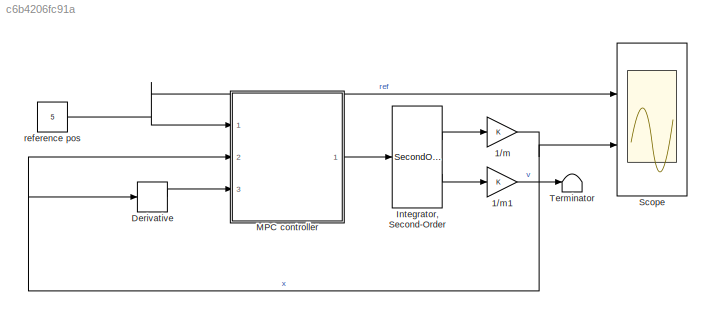
MODEL slx_c6b4206fc91a
KIND model
CONFIG AbsTol = auto
CONFIG EnableMultiTasking = off
CONFIG FixedStep = 0.01
CONFIG MaxStep = auto
CONFIG MinStep = auto
CONFIG RelTol = 1e-3
CONFIG SampleTimeConstraint = Unconstrained
CONFIG SolverName = FixedStepAuto
CONFIG StartTime = 0.0
CONFIG StopTime = 3
BLOCK [Gain] 1//m
BLOCK [Gain] 1//m1
BLOCK [Derivative] Derivative
BLOCK [SecondOrderIntegrator] Integrator, Second-Order
  Ports = [1, 2]
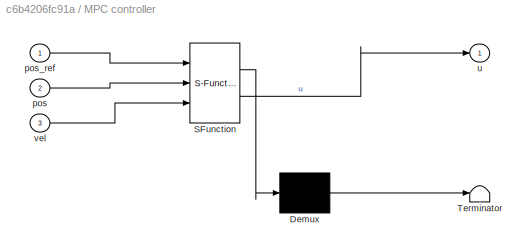
BLOCK [SubSystem] MPC controller
  ErrorFcn = Stateflow.Translate.translate
  PermitHierarchicalResolution = ExplicitOnly
  Ports = [3, 1]
  RequestExecContextInheritance = off
  SFBlockType = MATLAB Function
  TreatAsAtomicUnit = on
BLOCK [Demux] MPC controller/ Demux 
  Outputs = 1
  Ports = [1, 1]
BLOCK [S-Function] MPC controller/ SFunction 
  EnableBusSupport = on
  FunctionName = sf_sfun
  PortCounts = [3 2]
  Ports = [3, 2]
  SFcnIsStateOwnerBlock = off
  SFunctionDeploymentMode = off
  Tag = Stateflow S-Function 2
BLOCK [Terminator] MPC controller/ Terminator 
BLOCK [Inport] MPC controller/pos
  Port = 2
BLOCK [Inport] MPC controller/pos_ref
BLOCK [Outport] MPC controller/u
BLOCK [Inport] MPC controller/vel
  Port = 3
BLOCK [Scope] Scope
  Floating = off
  NumInputPorts = 2
  Ports = [2]
  ScopeSpecificationString = Simulink.scopes.TimeScopeBlockCfg('CurrentConfiguration', extmgr.ConfigurationSet(extmgr.Configuration('Core','General UI',true),extmgr.Configuration('Core','Source UI',true),extmgr.Configuration('Sources','WiredSimulink',true),extmgr.Configuration('Visuals','Time Domain',true,'SerializedDisplays',{struct('MinYLimReal','-2.22373','MaxYLimReal','15.67103','YLabelReal','','MinYLimMag','0.00000','Max...<+1445ch>
BLOCK [Terminator] Terminator
BLOCK [Constant] reference pos
  Value = 5
LINE 1//m1:1 -> Terminator:1
NET 1//m:1 -> Derivative:1, MPC controller:2, Scope:2
LINE Derivative:1 -> MPC controller:3
LINE Integrator, Second-Order:1 -> 1//m:1
LINE Integrator, Second-Order:2 -> 1//m1:1
LINE MPC controller:1 -> Integrator, Second-Order:1
NET reference pos:1 -> MPC controller:1, Scope:1
note: NET lines group one-source signal fan-out (src -> all destinations, sorted); 1:1 wires keep LINE
CHART MPC controller states=1 transitions=1
  STATE_LABEL 'eML_blk_kernel()'
  STATE_LABEL 'SCRIPT:\nfunction u = MPCController(pos_ref, pos, vel)\n    m = 1.05;\n    T = 0.01;\n    p = 45;\n    Q = 10*eye(2*p);\n    W = 0.0001*eye(p);\n    umax = 100;\n    Rk = zeros(2*p, 1);\n    Rk(1:2:end) = pos_ref;\n    Rk(2:2:end) = vel;\n    \n    xk    = [pos;vel];    %xk\n    A_    = [1 T;0 1];\n    B_    = [0;T/m];   \n    \n    psi   = zeros(2*p,2); %psi\n    for i=1:1:p\n        psi(i*2-1:i*2,1:2)=A_^i;\n    e...<+356ch>'
CHART  states=0 transitions=0
